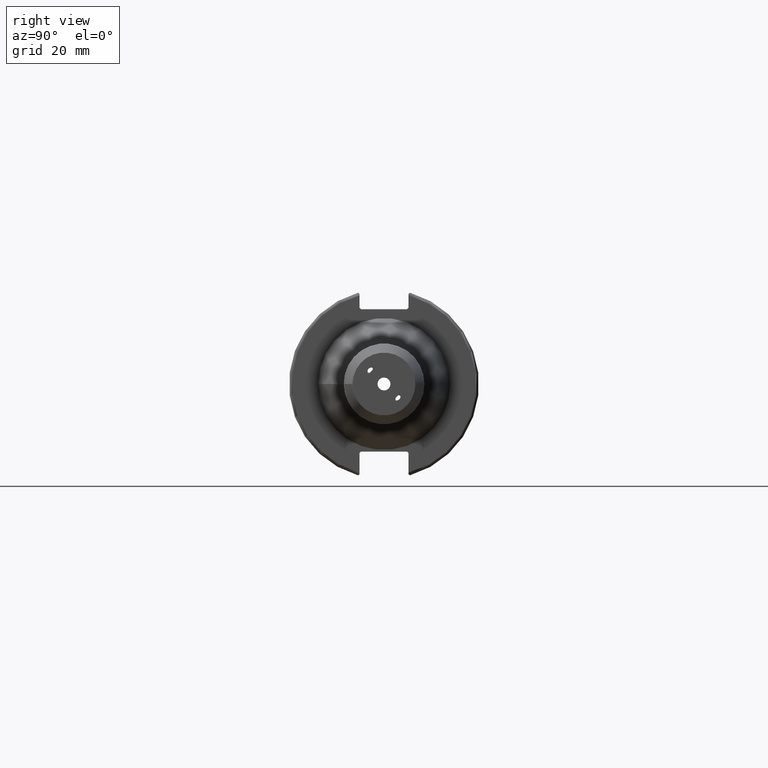
[diagram: clean part render]
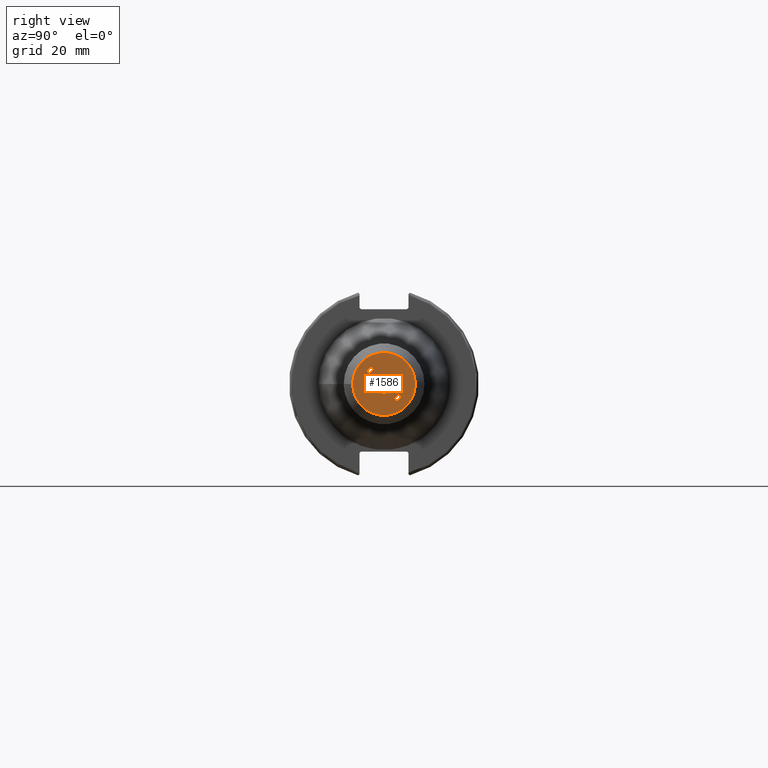
[diagram: same view with one face highlighted and labeled with its STEP entity id]
A machine part, right view. The second image highlights one B-rep face of the part: STEP entity #1586.
In plain terms, the highlighted planar face has unit normal (1, 0, 0).
Its self-contained STEP definition (entity closure, byte-faithful):
#39=FACE_BOUND('',#267,.T.);
#40=FACE_BOUND('',#268,.T.);
#41=FACE_BOUND('',#269,.T.);
#85=ELLIPSE('',#1694,1.25076193037353,1.25);
#86=ELLIPSE('',#1695,1.25076193037353,1.25);
#87=ELLIPSE('',#1701,1.25076193037353,1.25);
#88=ELLIPSE('',#1702,1.25076193037353,1.25);
#170=FACE_OUTER_BOUND('',#266,.T.);
#266=EDGE_LOOP('',(#1103));
#267=EDGE_LOOP('',(#1104,#1105,#1106));
#268=EDGE_LOOP('',(#1107,#1108,#1109));
#269=EDGE_LOOP('',(#1110));
#375=CIRCLE('',#1720,10.5);
#376=CIRCLE('',#1722,3.175);
#435=LINE('',#2365,#538);
#438=LINE('',#2380,#541);
#538=VECTOR('',#1882,10.);
#541=VECTOR('',#1899,10.);
#641=VERTEX_POINT('',#2363);
#642=VERTEX_POINT('',#2364);
#645=VERTEX_POINT('',#2373);
#646=VERTEX_POINT('',#2378);
#647=VERTEX_POINT('',#2379);
#650=VERTEX_POINT('',#2388);
#664=VERTEX_POINT('',#2501);
#665=VERTEX_POINT('',#2505);
#801=EDGE_CURVE('',#641,#642,#435,.T.);
#805=EDGE_CURVE('',#642,#645,#85,.T.);
#806=EDGE_CURVE('',#645,#641,#86,.T.);
#808=EDGE_CURVE('',#646,#647,#438,.T.);
#812=EDGE_CURVE('',#647,#650,#87,.T.);
#813=EDGE_CURVE('',#650,#646,#88,.T.);
#835=EDGE_CURVE('',#664,#664,#375,.T.);
#837=EDGE_CURVE('',#665,#665,#376,.T.);
#1103=ORIENTED_EDGE('',*,*,#835,.T.);
#1104=ORIENTED_EDGE('',*,*,#805,.T.);
#1105=ORIENTED_EDGE('',*,*,#806,.T.);
#1106=ORIENTED_EDGE('',*,*,#801,.T.);
#1107=ORIENTED_EDGE('',*,*,#812,.T.);
#1108=ORIENTED_EDGE('',*,*,#813,.T.);
#1109=ORIENTED_EDGE('',*,*,#808,.T.);
#1110=ORIENTED_EDGE('',*,*,#837,.F.);
#1535=PLANE('',#1721);
#1586=ADVANCED_FACE('',(#170,#39,#40,#41),#1535,.T.);
#1694=AXIS2_PLACEMENT_3D('',#2374,#1892,#1893);
#1695=AXIS2_PLACEMENT_3D('',#2375,#1894,#1895);
#1701=AXIS2_PLACEMENT_3D('',#2389,#1909,#1910);
#1702=AXIS2_PLACEMENT_3D('',#2390,#1911,#1912);
#1720=AXIS2_PLACEMENT_3D('',#2502,#1955,#1956);
#1721=AXIS2_PLACEMENT_3D('',#2504,#1958,#1959);
#1722=AXIS2_PLACEMENT_3D('',#2506,#1960,#1961);
#1882=DIRECTION('',(0.,-0.707106781186548,-0.707106781186548));
#1892=DIRECTION('center_axis',(-1.,0.,0.));
#1893=DIRECTION('ref_axis',(0.,0.707106781186413,-0.707106781186682));
#1894=DIRECTION('center_axis',(-1.,0.,0.));
#1895=DIRECTION('ref_axis',(0.,0.707106781186413,-0.707106781186682));
#1899=DIRECTION('',(0.,0.707106781186548,0.707106781186548));
#1909=DIRECTION('center_axis',(-1.,0.,0.));
#1910=DIRECTION('ref_axis',(0.,-0.707106781186413,0.707106781186682));
#1911=DIRECTION('center_axis',(-1.,0.,0.));
#1912=DIRECTION('ref_axis',(0.,-0.707106781186413,0.707106781186682));
#1955=DIRECTION('center_axis',(1.,0.,0.));
#1956=DIRECTION('ref_axis',(0.,0.,-1.));
#1958=DIRECTION('center_axis',(1.,0.,0.));
#1959=DIRECTION('ref_axis',(0.,0.,-1.));
#1960=DIRECTION('center_axis',(1.,0.,0.));
#1961=DIRECTION('ref_axis',(0.,0.,-1.));
#2363=CARTESIAN_POINT('',(160.,-3.35875721063628,5.12652416360265));
#2364=CARTESIAN_POINT('',(160.,-5.12652416360265,3.35875721063628));
#2365=CARTESIAN_POINT('',(160.,-3.44889068711946,5.03639068711946));
#2373=CARTESIAN_POINT('',(160.,-5.49302171034215,4.24340261745745));
#2374=CARTESIAN_POINT('Origin',(160.,-4.24264068711929,4.24264068711929));
#2375=CARTESIAN_POINT('Origin',(160.,-4.24264068711929,4.24264068711929));
#2378=CARTESIAN_POINT('',(160.,3.35875721063626,-5.12652416360263));
#2379=CARTESIAN_POINT('',(160.,5.12652416360263,-3.35875721063626));
#2380=CARTESIAN_POINT('',(160.,5.03639068711945,-3.44889068711945));
#2388=CARTESIAN_POINT('',(160.,5.49302171034215,-4.24340261745745));
#2389=CARTESIAN_POINT('Origin',(160.,4.24264068711929,-4.24264068711929));
#2390=CARTESIAN_POINT('Origin',(160.,4.24264068711929,-4.24264068711929));
#2501=CARTESIAN_POINT('',(160.,-10.5,-1.28587913910472E-15));
#2502=CARTESIAN_POINT('Origin',(160.,0.,0.));
#2504=CARTESIAN_POINT('Origin',(160.,3.175,0.));
#2505=CARTESIAN_POINT('',(160.,-3.175,-3.88825358729285E-16));
#2506=CARTESIAN_POINT('Origin',(160.,0.,0.));